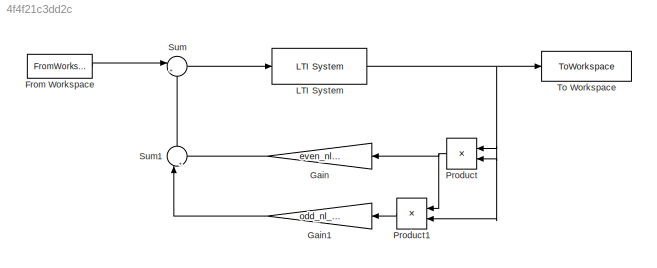
MODEL slx_4f4f21c3dd2c
KIND model
CONFIG AbsTol = auto
CONFIG EnableMultiTasking = off
CONFIG FixedStep = 1/harm.fs
CONFIG MaxStep = auto
CONFIG MinStep = auto
CONFIG RelTol = 1e-3
CONFIG SampleTimeConstraint = Unconstrained
CONFIG SolverName = FixedStepAuto
CONFIG StartTime = t(1)
CONFIG StopTime = t(end)
BLOCK [FromWorkspace] From Workspace
  VariableName = in
BLOCK [Gain] Gain
  Gain = even_nl_amp
  NameLocation = top
BLOCK [Gain] Gain1
  Gain = odd_nl_amp
  NameLocation = top
BLOCK [Reference] LTI System  REF=cstblocks/LTI System
  Ports = [1, 1]
  SourceBlock = cstblocks/LTI System
  SourceProductBaseCode = CT
  SourceType = LTI Block
BLOCK [Product] Product
  NameLocation = top
  Ports = [2, 1]
BLOCK [Product] Product1
  NameLocation = top
  Ports = [2, 1]
BLOCK [Sum] Sum
  Inputs = |++
  Ports = [2, 1]
BLOCK [Sum] Sum1
  Inputs = |++
  NameLocation = right
  Ports = [2, 1]
BLOCK [ToWorkspace] To Workspace
  FixptAsFi = on
  MaxDataPoints = inf
  Ports = [1]
  SampleTime = -1
  VariableName = out
LINE From Workspace:1 -> Sum:1
LINE Gain1:1 -> Sum1:1
LINE Gain:1 -> Sum1:2
NET LTI System:1 -> Product1:2, Product:1, Product:2, To Workspace:1
LINE Product1:1 -> Gain1:1
NET Product:1 -> Gain:1, Product1:1
LINE Sum1:1 -> Sum:2
LINE Sum:1 -> LTI System:1
note: NET lines group one-source signal fan-out (src -> all destinations, sorted); 1:1 wires keep LINE
